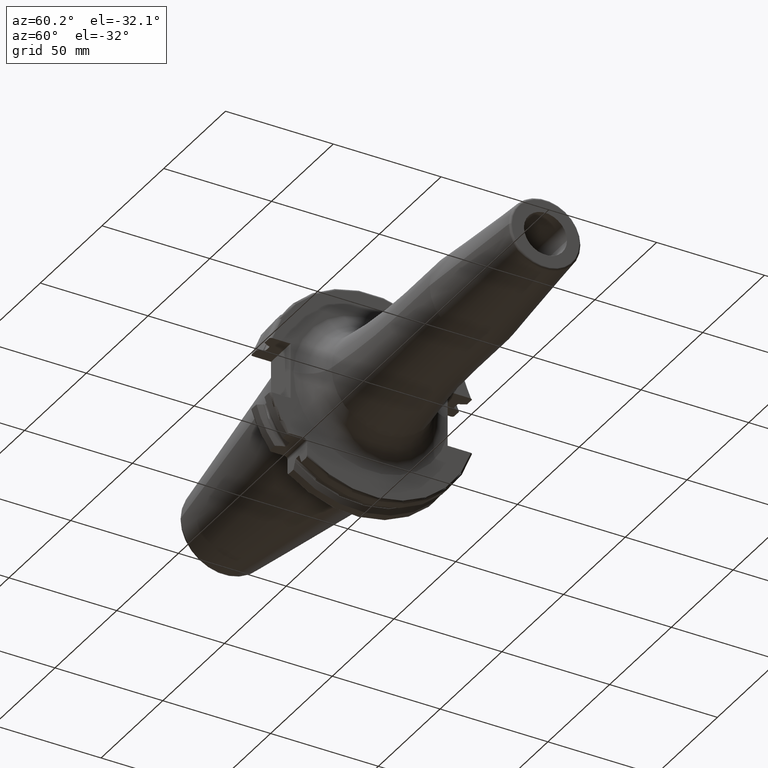
[diagram: clean part render]
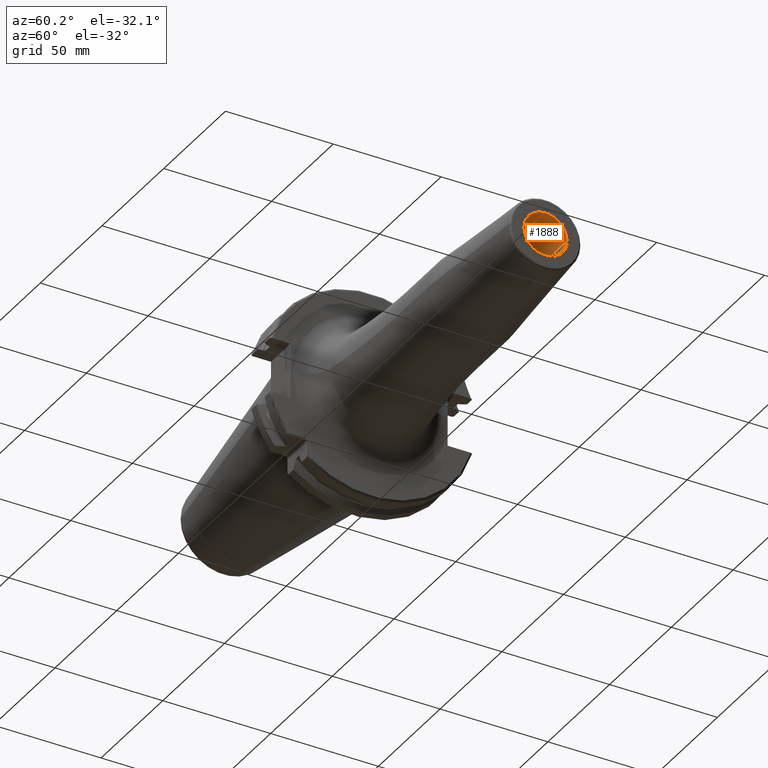
[diagram: same view with one face highlighted and labeled with its STEP entity id]
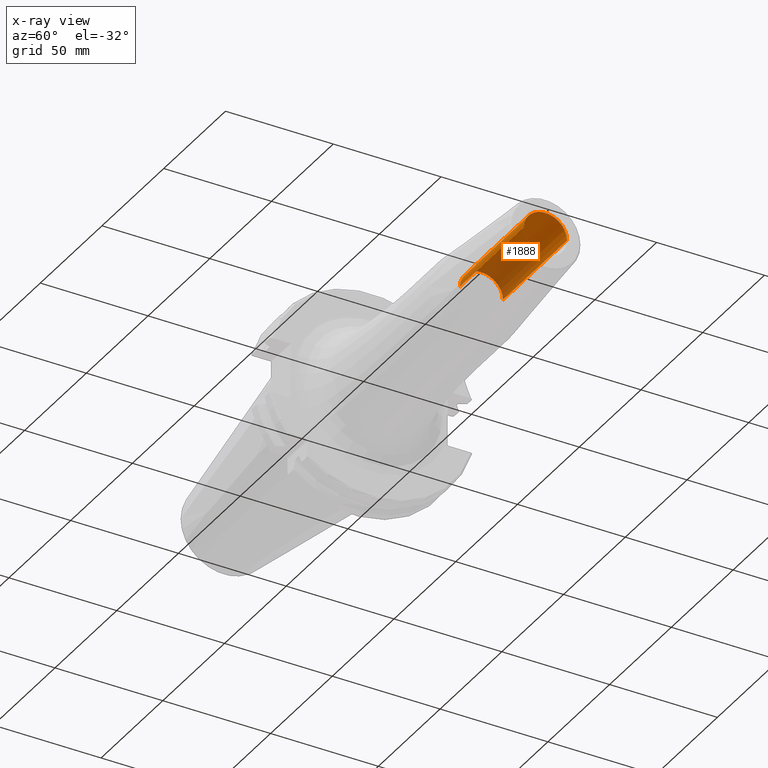
[diagram: x-ray of the same camera — body ghosted, the highlighted face saturated]
A machine part, auxiliary view. The second image highlights one B-rep face of the part: STEP entity #1888.
The next image is the same camera in x-ray: the body ghosted, the highlighted face saturated — about 38% of this face is hidden behind the body in this view.
In plain terms, the highlighted cylindrical surface (edge-blend (fillet) strip) has radius 10 mm, axis along (-1, 0, 0).
Its self-contained STEP definition (entity closure, byte-faithful):
#282=CARTESIAN_POINT('',(1.6E2,0.E0,0.E0));
#283=DIRECTION('',(-1.E0,0.E0,0.E0));
#284=DIRECTION('',(0.E0,-1.E0,0.E0));
#285=AXIS2_PLACEMENT_3D('',#282,#283,#284);
#292=DIRECTION('',(-1.E0,0.E0,0.E0));
#293=VECTOR('',#292,5.2E1);
#294=CARTESIAN_POINT('',(1.6E2,-1.E1,0.E0));
#295=LINE('',#294,#293);
#296=DIRECTION('',(-1.E0,0.E0,0.E0));
#297=VECTOR('',#296,5.2E1);
#298=CARTESIAN_POINT('',(1.6E2,1.E1,0.E0));
#299=LINE('',#298,#297);
#300=CARTESIAN_POINT('',(1.08E2,0.E0,0.E0));
#301=DIRECTION('',(-1.E0,0.E0,0.E0));
#302=DIRECTION('',(0.E0,-1.E0,0.E0));
#303=AXIS2_PLACEMENT_3D('',#300,#301,#302);
#1482=CARTESIAN_POINT('',(1.08E2,-1.E1,0.E0));
#1483=CARTESIAN_POINT('',(1.08E2,1.E1,0.E0));
#1484=VERTEX_POINT('',#1482);
#1485=VERTEX_POINT('',#1483);
#1486=CARTESIAN_POINT('',(1.6E2,-1.E1,0.E0));
#1487=CARTESIAN_POINT('',(1.6E2,1.E1,0.E0));
#1488=VERTEX_POINT('',#1486);
#1489=VERTEX_POINT('',#1487);
#1874=CARTESIAN_POINT('',(1.6E2,0.E0,0.E0));
#1875=DIRECTION('',(-1.E0,0.E0,0.E0));
#1876=DIRECTION('',(0.E0,-1.E0,0.E0));
#1877=AXIS2_PLACEMENT_3D('',#1874,#1875,#1876);
#1878=CYLINDRICAL_SURFACE('',#1877,1.E1);
#1879=ORIENTED_EDGE('',*,*,#1867,.T.);
#1881=ORIENTED_EDGE('',*,*,#1880,.T.);
#1883=ORIENTED_EDGE('',*,*,#1882,.F.);
#1885=ORIENTED_EDGE('',*,*,#1884,.F.);
#1886=EDGE_LOOP('',(#1879,#1881,#1883,#1885));
#1887=FACE_OUTER_BOUND('',#1886,.F.);
#1888=ADVANCED_FACE('',(#1887),#1878,.F.);
#286=CIRCLE('',#285,1.E1);
#304=CIRCLE('',#303,1.E1);
#1867=EDGE_CURVE('',#1488,#1489,#286,.T.);
#1880=EDGE_CURVE('',#1489,#1485,#299,.T.);
#1882=EDGE_CURVE('',#1484,#1485,#304,.T.);
#1884=EDGE_CURVE('',#1488,#1484,#295,.T.);